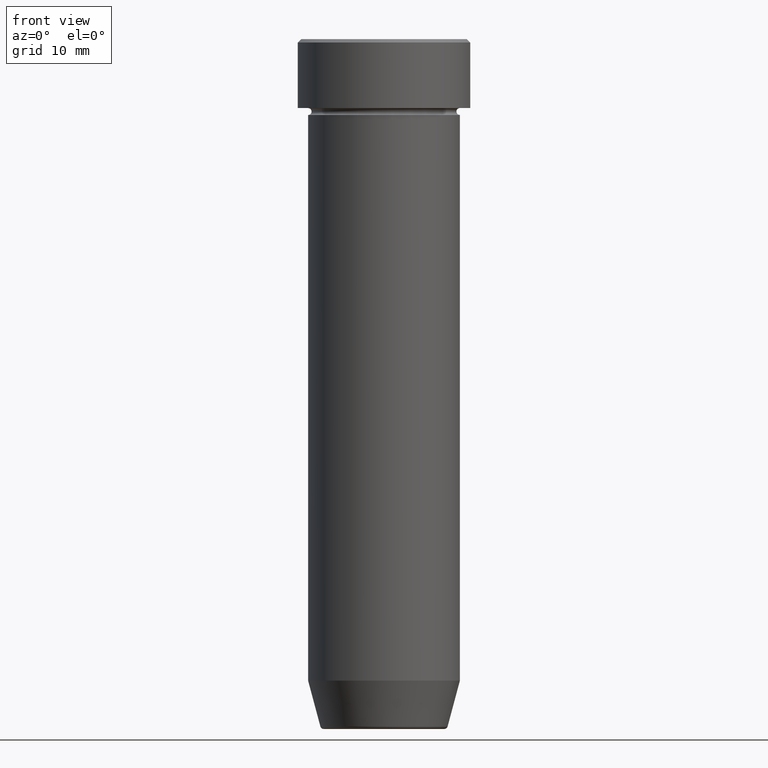
[diagram: clean part render]
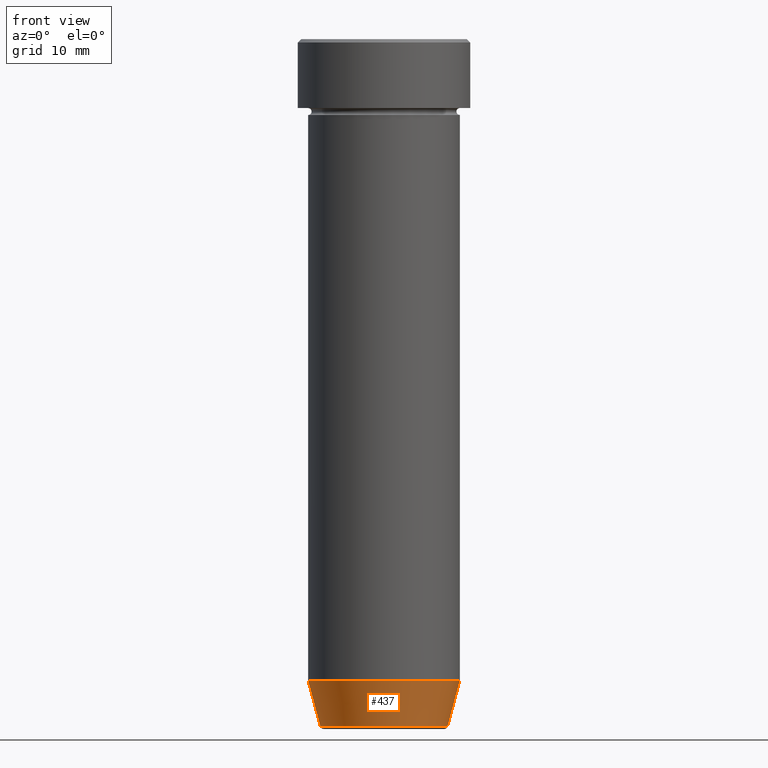
[diagram: same view with one face highlighted and labeled with its STEP entity id]
A machine part, front view. The second image highlights one B-rep face of the part: STEP entity #437.
In plain terms, the highlighted conical surface has half-angle 15 deg.
Its self-contained STEP definition (entity closure, byte-faithful):
#6 = VECTOR ( 'NONE', #65, 1000.000000000000000 ) ;
#7 = FACE_OUTER_BOUND ( 'NONE', #100, .T. ) ;
#9 = VERTEX_POINT ( 'NONE', #152 ) ;
#47 = VECTOR ( 'NONE', #146, 1000.000000000000000 ) ;
#52 = DIRECTION ( 'NONE',  ( -0.000000000000000000, -0.000000000000000000, 1.000000000000000000 ) ) ;
#65 = DIRECTION ( 'NONE',  ( 0.2588190451025217942, 0.000000000000000000, 0.9659258262890679791 ) ) ;
#97 = CARTESIAN_POINT ( 'NONE',  ( 0.000000000000000000, 0.000000000000000000, -99.62940952255124216 ) ) ;
#100 = EDGE_LOOP ( 'NONE', ( #429, #147, #324, #201 ) ) ;
#146 = DIRECTION ( 'NONE',  ( -0.2588190451025217942, 3.169619151431777884E-17, 0.9659258262890679791 ) ) ;
#147 = ORIENTED_EDGE ( 'NONE', *, *, #471, .T. ) ;
#152 = CARTESIAN_POINT ( 'NONE',  ( -11.00000000000000000, 1.347111479062088405E-15, -92.99999999999998579 ) ) ;
#162 = CONICAL_SURFACE ( 'NONE', #222, 9.124355652982133691, 0.2617993877991505181 ) ;
#167 = CARTESIAN_POINT ( 'NONE',  ( 9.223655072137189492, 0.000000000000000000, -99.62940952255124216 ) ) ;
#170 = CARTESIAN_POINT ( 'NONE',  ( 11.00000000000000000, 0.000000000000000000, -92.99999999999998579 ) ) ;
#195 = CIRCLE ( 'NONE', #288, 11.00000000000000000 ) ;
#201 = ORIENTED_EDGE ( 'NONE', *, *, #411, .F. ) ;
#202 = CARTESIAN_POINT ( 'NONE',  ( 9.124355652982133691, 0.000000000000000000, -99.99999999999997158 ) ) ;
#222 = AXIS2_PLACEMENT_3D ( 'NONE', #475, #521, #342 ) ;
#226 = VERTEX_POINT ( 'NONE', #167 ) ;
#264 = VERTEX_POINT ( 'NONE', #170 ) ;
#288 = AXIS2_PLACEMENT_3D ( 'NONE', #299, #52, #566 ) ;
#299 = CARTESIAN_POINT ( 'NONE',  ( 0.000000000000000000, 0.000000000000000000, -92.99999999999998579 ) ) ;
#324 = ORIENTED_EDGE ( 'NONE', *, *, #540, .T. ) ;
#334 = LINE ( 'NONE', #511, #47 ) ;
#342 = DIRECTION ( 'NONE',  ( 1.000000000000000000, 0.000000000000000000, 0.000000000000000000 ) ) ;
#344 = AXIS2_PLACEMENT_3D ( 'NONE', #97, #478, #421 ) ;
#380 = VERTEX_POINT ( 'NONE', #505 ) ;
#411 = EDGE_CURVE ( 'NONE', #9, #264, #195, .T. ) ;
#421 = DIRECTION ( 'NONE',  ( -1.000000000000000000, 0.000000000000000000, 0.000000000000000000 ) ) ;
#429 = ORIENTED_EDGE ( 'NONE', *, *, #430, .F. ) ;
#430 = EDGE_CURVE ( 'NONE', #380, #9, #334, .T. ) ;
#431 = LINE ( 'NONE', #202, #6 ) ;
#437 = ADVANCED_FACE ( 'NONE', ( #7 ), #162, .T. ) ;
#471 = EDGE_CURVE ( 'NONE', #380, #226, #526, .T. ) ;
#475 = CARTESIAN_POINT ( 'NONE',  ( 0.000000000000000000, 0.000000000000000000, -99.99999999999997158 ) ) ;
#478 = DIRECTION ( 'NONE',  ( -0.000000000000000000, -0.000000000000000000, 1.000000000000000000 ) ) ;
#505 = CARTESIAN_POINT ( 'NONE',  ( -9.223655072137189492, 1.238341722557647004E-15, -99.62940952255124216 ) ) ;
#511 = CARTESIAN_POINT ( 'NONE',  ( -9.124355652982133691, 1.117411294470662806E-15, -99.99999999999997158 ) ) ;
#521 = DIRECTION ( 'NONE',  ( -0.000000000000000000, -0.000000000000000000, 1.000000000000000000 ) ) ;
#526 = CIRCLE ( 'NONE', #344, 9.223655072137189492 ) ;
#540 = EDGE_CURVE ( 'NONE', #226, #264, #431, .T. ) ;
#566 = DIRECTION ( 'NONE',  ( 1.000000000000000000, 0.000000000000000000, 0.000000000000000000 ) ) ;